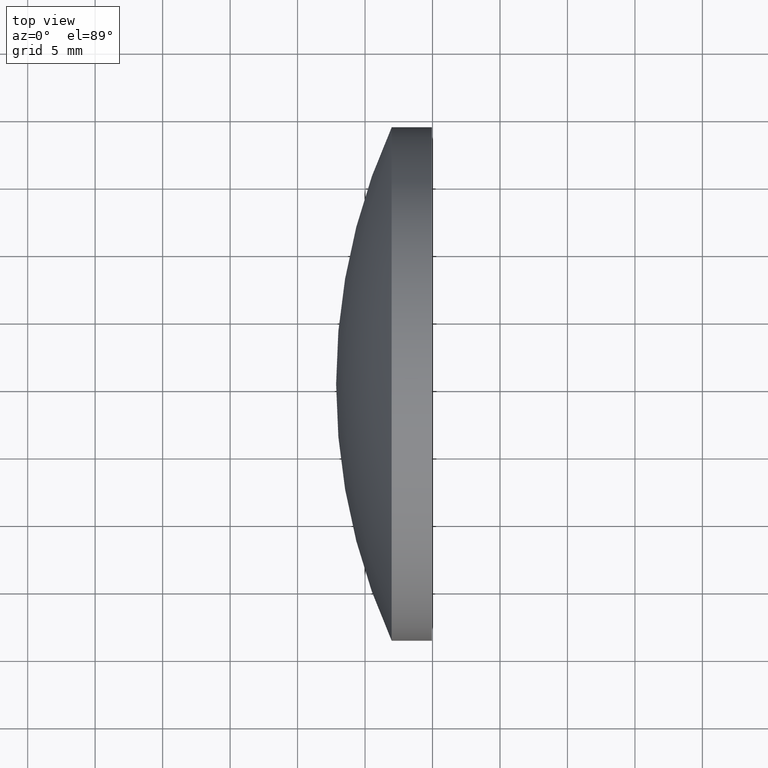
[diagram: clean part render]
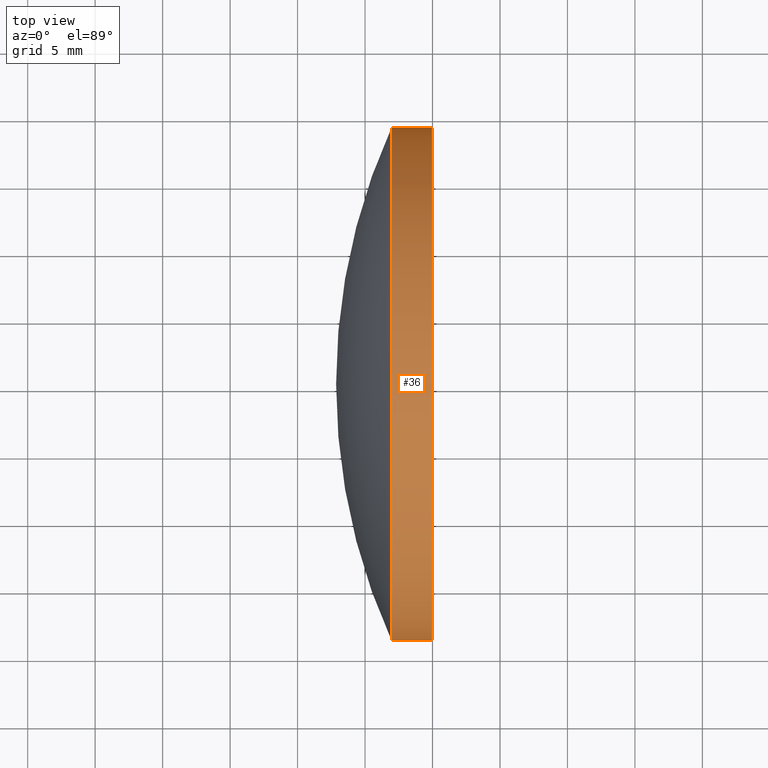
[diagram: same view with one face highlighted and labeled with its STEP entity id]
A machine part, top view. The second image highlights one B-rep face of the part: STEP entity #36.
In plain terms, the highlighted cylindrical surface (partial cylindrical patch) has radius 19.025 mm, axis along (-1, -0, -0).
Its self-contained STEP definition (entity closure, byte-faithful):
#6 = DIRECTION ( 'NONE',  ( -1.000000000000000000, -6.937607244762875000E-016, -0.0000000000000000000 ) ) ;
#10 = EDGE_CURVE ( 'NONE', #68, #155, #79, .T. ) ;
#14 = VECTOR ( 'NONE', #106, 1000.000000000000000 ) ;
#17 = AXIS2_PLACEMENT_3D ( 'NONE', #104, #180, #55 ) ;
#30 = CARTESIAN_POINT ( 'NONE',  ( 129.9541739262057300, 84.24184047094027500, 2.329890535377707400E-015 ) ) ;
#36 = ADVANCED_FACE ( 'NONE', ( #78 ), #183, .T. ) ;
#40 = VERTEX_POINT ( 'NONE', #30 ) ;
#46 = CARTESIAN_POINT ( 'NONE',  ( 126.9740486661308800, 84.24184047094033200, 2.329890535377838700E-015 ) ) ;
#51 = AXIS2_PLACEMENT_3D ( 'NONE', #82, #93, #182 ) ;
#52 = ORIENTED_EDGE ( 'NONE', *, *, #88, .T. ) ;
#55 = DIRECTION ( 'NONE',  ( 7.294500818824955000E-016, -1.000000000000000000, 0.0000000000000000000 ) ) ;
#57 = ORIENTED_EDGE ( 'NONE', *, *, #10, .F. ) ;
#68 = VERTEX_POINT ( 'NONE', #186 ) ;
#73 = DIRECTION ( 'NONE',  ( 0.0000000000000000000, -1.000000000000000000, 0.0000000000000000000 ) ) ;
#78 = FACE_OUTER_BOUND ( 'NONE', #98, .T. ) ;
#79 = CIRCLE ( 'NONE', #179, 19.02499999999999500 ) ;
#81 = CARTESIAN_POINT ( 'NONE',  ( 115.9444912979631800, 46.19184047094035600, 0.0000000000000000000 ) ) ;
#82 = CARTESIAN_POINT ( 'NONE',  ( 129.9541739262057300, 65.21684047094034000, 0.0000000000000000000 ) ) ;
#88 = EDGE_CURVE ( 'NONE', #175, #40, #94, .T. ) ;
#93 = DIRECTION ( 'NONE',  ( -1.000000000000000000, -6.937607244762875000E-016, -0.0000000000000000000 ) ) ;
#94 = CIRCLE ( 'NONE', #51, 19.02499999999995900 ) ;
#98 = EDGE_LOOP ( 'NONE', ( #52, #172, #57, #101 ) ) ;
#100 = EDGE_CURVE ( 'NONE', #40, #155, #176, .T. ) ;
#101 = ORIENTED_EDGE ( 'NONE', *, *, #144, .F. ) ;
#102 = LINE ( 'NONE', #81, #14 ) ;
#104 = CARTESIAN_POINT ( 'NONE',  ( 115.9444912979631700, 65.21684047094032600, 0.0000000000000000000 ) ) ;
#106 = DIRECTION ( 'NONE',  ( -1.000000000000000000, -6.937607244762875000E-016, -0.0000000000000000000 ) ) ;
#121 = CARTESIAN_POINT ( 'NONE',  ( 115.9444912979631500, 84.24184047094030300, 2.329890535377836000E-015 ) ) ;
#127 = CARTESIAN_POINT ( 'NONE',  ( 126.9740486661308800, 65.21684047094034000, 0.0000000000000000000 ) ) ;
#144 = EDGE_CURVE ( 'NONE', #175, #68, #102, .T. ) ;
#150 = VECTOR ( 'NONE', #6, 1000.000000000000000 ) ;
#155 = VERTEX_POINT ( 'NONE', #46 ) ;
#163 = DIRECTION ( 'NONE',  ( -1.000000000000000000, -6.937607244762875000E-016, -0.0000000000000000000 ) ) ;
#172 = ORIENTED_EDGE ( 'NONE', *, *, #100, .T. ) ;
#175 = VERTEX_POINT ( 'NONE', #184 ) ;
#176 = LINE ( 'NONE', #121, #150 ) ;
#179 = AXIS2_PLACEMENT_3D ( 'NONE', #127, #163, #73 ) ;
#180 = DIRECTION ( 'NONE',  ( -1.000000000000000000, -6.937607244762875000E-016, -0.0000000000000000000 ) ) ;
#182 = DIRECTION ( 'NONE',  ( 0.0000000000000000000, -1.000000000000000000, 0.0000000000000000000 ) ) ;
#183 = CYLINDRICAL_SURFACE ( 'NONE', #17, 19.02499999999997400 ) ;
#184 = CARTESIAN_POINT ( 'NONE',  ( 129.9541739262057300, 46.19184047094142200, 0.0000000000000000000 ) ) ;
#186 = CARTESIAN_POINT ( 'NONE',  ( 126.9740486661308800, 46.19184047094034900, 0.0000000000000000000 ) ) ;